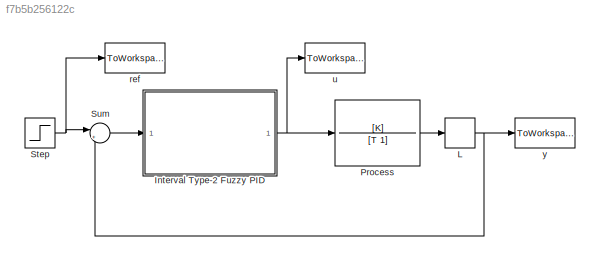
MODEL slx_f7b5b256122c
KIND model
CONFIG AbsTol = auto
CONFIG FixedStep = 0.05
CONFIG MaxStep = auto
CONFIG MinStep = auto
CONFIG RelTol = 1e-3
CONFIG SampleTimeConstraint = Unconstrained
CONFIG Solver = ode4
CONFIG SolverMode = Auto
CONFIG SolverName = ode4
CONFIG StartTime = 0.0
CONFIG StopTime = 8
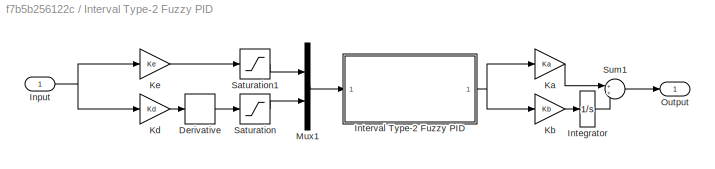
BLOCK [SubSystem] Interval Type-2 Fuzzy PID
  Ports = [1, 1]
  RequestExecContextInheritance = off
  Variant = off
BLOCK [Derivative] Interval Type-2 Fuzzy PID/Derivative
BLOCK [Inport] Interval Type-2 Fuzzy PID/Input
  IconDisplay = Port number
BLOCK [Integrator] Interval Type-2 Fuzzy PID/Integrator
  Ports = [1, 1]
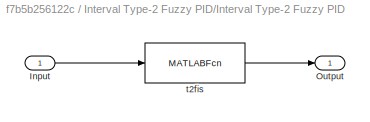
BLOCK [SubSystem] Interval Type-2 Fuzzy PID/Interval Type-2 Fuzzy PID
  AncestorBlock = Fuzzy_Type2_Lib/Interval Type-2 Fuzzy Logic Controller with TR selection
  Ports = [1, 1]
  RequestExecContextInheritance = off
  Variant = off
BLOCK [Inport] Interval Type-2 Fuzzy PID/Interval Type-2 Fuzzy PID/Input
  IconDisplay = Port number
BLOCK [Outport] Interval Type-2 Fuzzy PID/Interval Type-2 Fuzzy PID/Output
  IconDisplay = Port number
BLOCK [MATLABFcn] Interval Type-2 Fuzzy PID/Interval Type-2 Fuzzy PID/t2fis
  MATLABFcn = evalt2(u,t2fisSim,TRtype)
  OutputDimensions = 1
  Ports = [1, 1]
BLOCK [Gain] Interval Type-2 Fuzzy PID/Ka
  Gain = Ka
  OutDataTypeStr = Inherit: Inherit via internal rule
  ParamDataTypeStr = Inherit: Inherit via internal rule
  SaturateOnIntegerOverflow = off
BLOCK [Gain] Interval Type-2 Fuzzy PID/Kb
  Gain = Kb
  OutDataTypeStr = Inherit: Inherit via internal rule
  ParamDataTypeStr = Inherit: Inherit via internal rule
  SaturateOnIntegerOverflow = off
BLOCK [Gain] Interval Type-2 Fuzzy PID/Kd
  Gain = Kd
  OutDataTypeStr = Inherit: Inherit via internal rule
  ParamDataTypeStr = Inherit: Inherit via internal rule
  SaturateOnIntegerOverflow = off
BLOCK [Gain] Interval Type-2 Fuzzy PID/Ke
  Gain = Ke
  OutDataTypeStr = Inherit: Inherit via internal rule
  ParamDataTypeStr = Inherit: Inherit via internal rule
  SaturateOnIntegerOverflow = off
BLOCK [Mux] Interval Type-2 Fuzzy PID/Mux1
  DisplayOption = bar
  Inputs = 2
  Ports = [2, 1]
BLOCK [Outport] Interval Type-2 Fuzzy PID/Output
  IconDisplay = Port number
BLOCK [Saturate] Interval Type-2 Fuzzy PID/Saturation
  InputPortMap = u0
  LowerLimit = -1
  Ports = [1, 1]
  UpperLimit = 1
BLOCK [Saturate] Interval Type-2 Fuzzy PID/Saturation1
  InputPortMap = u0
  LowerLimit = -1
  Ports = [1, 1]
  UpperLimit = 1
BLOCK [Sum] Interval Type-2 Fuzzy PID/Sum1
  IconShape = round
  InputSameDT = off
  OutDataTypeStr = Inherit: Inherit via internal rule
  Ports = [2, 1]
  SaturateOnIntegerOverflow = off
BLOCK [TransportDelay] L
  DelayTime = L
  Ports = [1, 1]
BLOCK [TransferFcn] Process
  Denominator = [T 1]
  Numerator = [K]
BLOCK [Step] Step
  SampleTime = 0
BLOCK [Sum] Sum
  IconShape = round
  InputSameDT = off
  Inputs = |+-
  OutDataTypeStr = Inherit: Inherit via internal rule
  Ports = [2, 1]
  SaturateOnIntegerOverflow = off
BLOCK [ToWorkspace] ref
  MaxDataPoints = inf
  Ports = [1]
  SampleTime = -1
  SaveFormat = Structure With Time
  VariableName = ref
BLOCK [ToWorkspace] u
  MaxDataPoints = inf
  Ports = [1]
  SampleTime = -1
  SaveFormat = Structure With Time
  VariableName = u
BLOCK [ToWorkspace] y
  MaxDataPoints = inf
  Ports = [1]
  SampleTime = -1
  SaveFormat = Structure With Time
  VariableName = y
LINE Interval Type-2 Fuzzy PID/Derivative:1 -> Interval Type-2 Fuzzy PID/Saturation:1
NET Interval Type-2 Fuzzy PID/Input:1 -> Interval Type-2 Fuzzy PID/Kd:1, Interval Type-2 Fuzzy PID/Ke:1
LINE Interval Type-2 Fuzzy PID/Integrator:1 -> Interval Type-2 Fuzzy PID/Sum1:2
NET Interval Type-2 Fuzzy PID/Interval Type-2 Fuzzy PID:1 -> Interval Type-2 Fuzzy PID/Ka:1, Interval Type-2 Fuzzy PID/Kb:1
LINE Interval Type-2 Fuzzy PID/Ka:1 -> Interval Type-2 Fuzzy PID/Sum1:1
LINE Interval Type-2 Fuzzy PID/Kb:1 -> Interval Type-2 Fuzzy PID/Integrator:1
LINE Interval Type-2 Fuzzy PID/Kd:1 -> Interval Type-2 Fuzzy PID/Derivative:1
LINE Interval Type-2 Fuzzy PID/Ke:1 -> Interval Type-2 Fuzzy PID/Saturation1:1
LINE Interval Type-2 Fuzzy PID/Mux1:1 -> Interval Type-2 Fuzzy PID/Interval Type-2 Fuzzy PID:1
LINE Interval Type-2 Fuzzy PID/Saturation1:1 -> Interval Type-2 Fuzzy PID/Mux1:1
LINE Interval Type-2 Fuzzy PID/Saturation:1 -> Interval Type-2 Fuzzy PID/Mux1:2
LINE Interval Type-2 Fuzzy PID/Sum1:1 -> Interval Type-2 Fuzzy PID/Output:1
NET Interval Type-2 Fuzzy PID:1 -> Process:1, u:1
NET L:1 -> Sum:2, y:1
LINE Process:1 -> L:1
NET Step:1 -> Sum:1, ref:1
LINE Sum:1 -> Interval Type-2 Fuzzy PID:1
note: NET lines group one-source signal fan-out (src -> all destinations, sorted); 1:1 wires keep LINE
